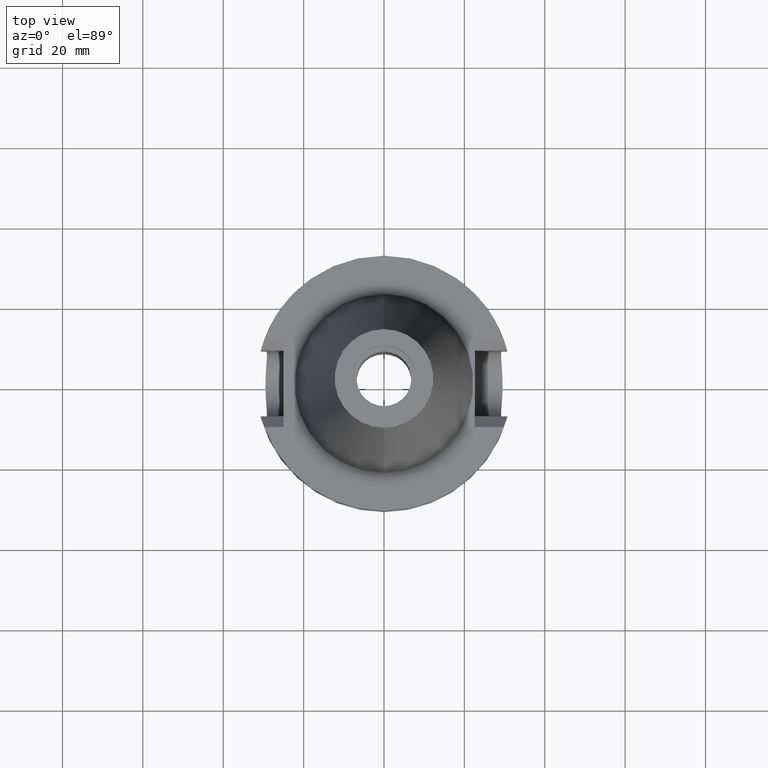
[diagram: clean part render]
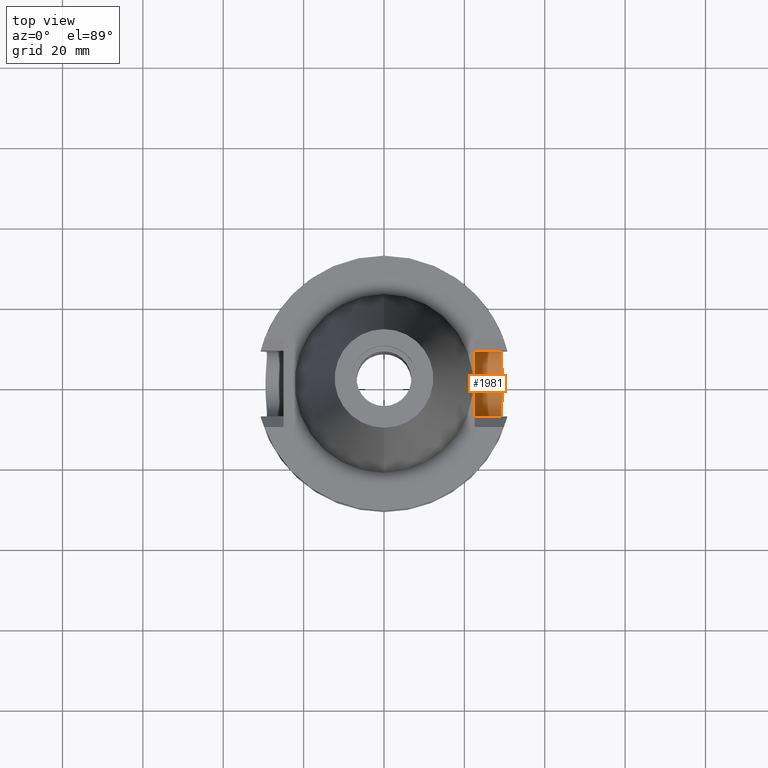
[diagram: same view with one face highlighted and labeled with its STEP entity id]
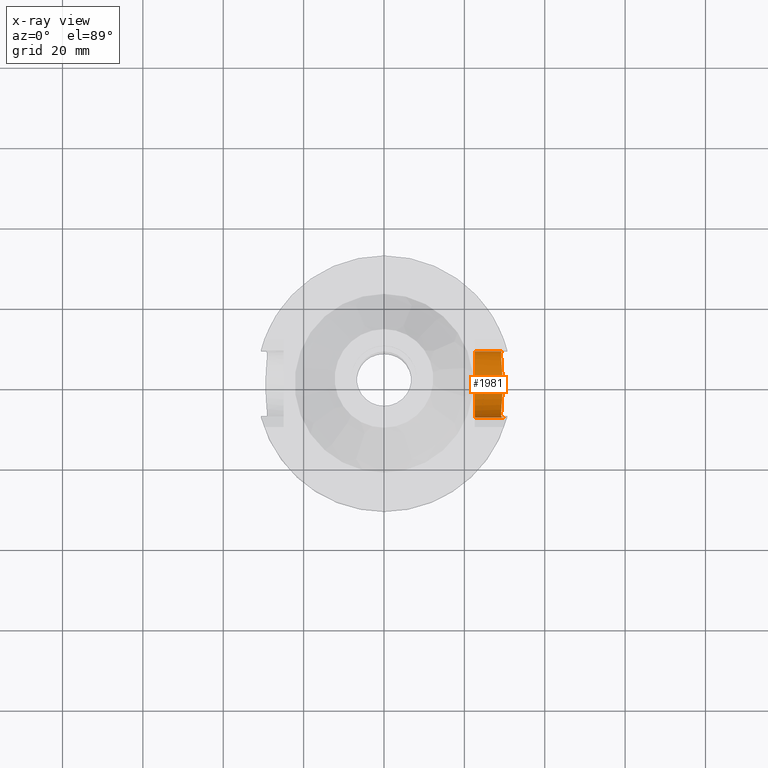
[diagram: x-ray of the same camera — body ghosted, the highlighted face saturated]
A machine part, top view. The second image highlights one B-rep face of the part: STEP entity #1981.
The next image is the same camera in x-ray: the body ghosted, the highlighted face saturated — about 0% of this face is hidden behind the body in this view.
In plain terms, the highlighted cylindrical surface (edge-blend (fillet) strip) has radius 8.19 mm, axis along (1, 0, 0).
Its self-contained STEP definition (entity closure, byte-faithful):
#177=CARTESIAN_POINT('',(2.257E1,0.E0,-1.931E1));
#178=DIRECTION('',(-1.E0,0.E0,0.E0));
#179=DIRECTION('',(0.E0,1.E0,0.E0));
#180=AXIS2_PLACEMENT_3D('',#177,#178,#179);
#185=CARTESIAN_POINT('',(2.257E1,0.E0,-1.931E1));
#186=DIRECTION('',(-1.E0,0.E0,0.E0));
#187=DIRECTION('',(0.E0,0.E0,-1.E0));
#188=AXIS2_PLACEMENT_3D('',#185,#186,#187);
#268=CARTESIAN_POINT('',(2.926622655994E1,8.156499324937E0,-2.004999907871E1));
#269=CARTESIAN_POINT('',(2.935044890862E1,8.164043623889E0,-1.996684325477E1));
#270=CARTESIAN_POINT('',(2.951898359708E1,8.176515552469E0,-1.980113379630E1));
#271=CARTESIAN_POINT('',(2.977184825368E1,8.187583323344E0,-1.955441731411E1));
#272=CARTESIAN_POINT('',(2.994038108907E1,8.189997537220E0,-1.939125430995E1));
#273=CARTESIAN_POINT('',(3.002460375380E1,8.189997537220E0,-1.931000033623E1));
#316=DIRECTION('',(-1.E0,7.934506691552E-8,-1.082093103779E-8));
#317=VECTOR('',#316,7.454603102180E0);
#318=CARTESIAN_POINT('',(3.002460310218E1,-8.190000591486E0,-1.930999991933E1));
#319=LINE('',#318,#317);
#323=DIRECTION('',(9.999999999999E-1,-3.303702789561E-7,-4.510420903318E-8));
#324=VECTOR('',#323,7.454603753801E0);
#325=CARTESIAN_POINT('',(2.257E1,8.19E0,-1.931E1));
#326=LINE('',#325,#324);
#330=CARTESIAN_POINT('',(2.926622492567E1,-8.156505482320E0,-2.004999819597E1));
#331=CARTESIAN_POINT('',(2.921082764204E1,-8.104992317991E0,-2.061779582785E1));
#332=CARTESIAN_POINT('',(2.913458950729E1,-7.883162578569E0,-2.174399728498E1));
#333=CARTESIAN_POINT('',(2.911917503554E1,-7.201716323873E0,-2.333487978560E1));
#334=CARTESIAN_POINT('',(2.917996722114E1,-6.210274420500E0,-2.474111716122E1));
#335=CARTESIAN_POINT('',(2.928450756410E1,-4.936174760060E0,-2.592257348169E1));
#336=CARTESIAN_POINT('',(2.939613940193E1,-3.426392716697E0,-2.681735535054E1));
#337=CARTESIAN_POINT('',(2.947931261622E1,-1.759484105035E0,-2.737292011917E1));
#338=CARTESIAN_POINT('',(2.949994772193E1,-5.874497500764E-1,-2.75E1));
#339=CARTESIAN_POINT('',(2.949994772193E1,0.E0,-2.75E1));
#344=CARTESIAN_POINT('',(2.949994772193E1,0.E0,-2.75E1));
#345=CARTESIAN_POINT('',(2.949994772193E1,5.838545011751E-1,-2.75E1));
#346=CARTESIAN_POINT('',(2.947957477400E1,1.750965250456E0,-2.737453650855E1));
#347=CARTESIAN_POINT('',(2.939664017381E1,3.418988917080E0,-2.682096687411E1));
#348=CARTESIAN_POINT('',(2.928475193223E1,4.933348365071E0,-2.592518076510E1));
#349=CARTESIAN_POINT('',(2.917980436197E1,6.212051306801E0,-2.473970134051E1));
#350=CARTESIAN_POINT('',(2.911900815839E1,7.205305696244E0,-2.332894016973E1));
#351=CARTESIAN_POINT('',(2.913492348558E1,7.885306583261E0,-2.173642116681E1));
#352=CARTESIAN_POINT('',(2.921114916104E1,8.105283384283E0,-2.061451856165E1));
#353=CARTESIAN_POINT('',(2.926622655994E1,8.156499324937E0,-2.004999907871E1));
#807=CARTESIAN_POINT('',(3.002460310218E1,-8.190000591486E0,-1.930999991933E1));
#812=CARTESIAN_POINT('',(3.002460310218E1,-8.190000591486E0,-1.930999991933E1));
#813=CARTESIAN_POINT('',(2.994038033630E1,-8.190000591486E0,-1.939125398412E1));
#814=CARTESIAN_POINT('',(2.977185090813E1,-8.187582635763E0,-1.955442180878E1));
#815=CARTESIAN_POINT('',(2.951898780826E1,-8.176512763051E0,-1.980113910931E1));
#816=CARTESIAN_POINT('',(2.935044611964E1,-8.164049649050E0,-1.996684352940E1));
#817=CARTESIAN_POINT('',(2.926622492567E1,-8.156505482320E0,-2.004999819597E1));
#1603=VERTEX_POINT('',#807);
#1604=VERTEX_POINT('',#817);
#1608=VERTEX_POINT('',#268);
#1609=VERTEX_POINT('',#273);
#1631=CARTESIAN_POINT('',(2.257E1,-8.19E0,-1.931E1));
#1632=VERTEX_POINT('',#1631);
#1693=CARTESIAN_POINT('',(2.257E1,8.19E0,-1.931E1));
#1694=VERTEX_POINT('',#1693);
#1695=CARTESIAN_POINT('',(2.257E1,0.E0,-2.75E1));
#1696=VERTEX_POINT('',#1695);
#1743=VERTEX_POINT('',#344);
#1962=CARTESIAN_POINT('',(2.257E1,0.E0,-1.931E1));
#1963=DIRECTION('',(1.E0,0.E0,0.E0));
#1964=DIRECTION('',(0.E0,0.E0,-1.E0));
#1965=AXIS2_PLACEMENT_3D('',#1962,#1963,#1964);
#1966=CYLINDRICAL_SURFACE('',#1965,8.19E0);
#1968=ORIENTED_EDGE('',*,*,#1967,.F.);
#1970=ORIENTED_EDGE('',*,*,#1969,.F.);
#1972=ORIENTED_EDGE('',*,*,#1971,.F.);
#1974=ORIENTED_EDGE('',*,*,#1973,.T.);
#1975=ORIENTED_EDGE('',*,*,#1866,.F.);
#1976=ORIENTED_EDGE('',*,*,#1864,.F.);
#1977=ORIENTED_EDGE('',*,*,#1917,.T.);
#1978=ORIENTED_EDGE('',*,*,#1944,.F.);
#1979=EDGE_LOOP('',(#1968,#1970,#1972,#1974,#1975,#1976,#1977,#1978));
#1980=FACE_OUTER_BOUND('',#1979,.F.);
#181=CIRCLE('',#180,8.19E0);
#189=CIRCLE('',#188,8.19E0);
#274=B_SPLINE_CURVE_WITH_KNOTS('',3,(#268,#269,#270,#271,#272,#273),
.UNSPECIFIED.,.F.,.F.,(4,1,1,4),(0.E0,3.333333333333E-1,6.666666666667E-1,1.E0),
.UNSPECIFIED.);
#340=B_SPLINE_CURVE_WITH_KNOTS('',3,(#330,#331,#332,#333,#334,#335,#336,#337,
#338,#339),.UNSPECIFIED.,.F.,.F.,(4,1,1,1,1,1,1,4),(0.E0,1.428571428571E-1,
2.857142857143E-1,4.285714285714E-1,5.714285714286E-1,7.142857142857E-1,
8.571428571429E-1,1.E0),.UNSPECIFIED.);
#354=B_SPLINE_CURVE_WITH_KNOTS('',3,(#344,#345,#346,#347,#348,#349,#350,#351,
#352,#353),.UNSPECIFIED.,.F.,.F.,(4,1,1,1,1,1,1,4),(0.E0,1.428571428571E-1,
2.857142857143E-1,4.285714285714E-1,5.714285714286E-1,7.142857142857E-1,
8.571428571429E-1,1.E0),.UNSPECIFIED.);
#818=B_SPLINE_CURVE_WITH_KNOTS('',3,(#812,#813,#814,#815,#816,#817),
.UNSPECIFIED.,.F.,.F.,(4,1,1,4),(0.E0,3.333333333333E-1,6.666666666667E-1,1.E0),
.UNSPECIFIED.);
#1864=EDGE_CURVE('',#1694,#1696,#181,.T.);
#1866=EDGE_CURVE('',#1696,#1632,#189,.T.);
#1917=EDGE_CURVE('',#1694,#1609,#326,.T.);
#1944=EDGE_CURVE('',#1608,#1609,#274,.T.);
#1967=EDGE_CURVE('',#1743,#1608,#354,.T.);
#1969=EDGE_CURVE('',#1604,#1743,#340,.T.);
#1971=EDGE_CURVE('',#1603,#1604,#818,.T.);
#1973=EDGE_CURVE('',#1603,#1632,#319,.T.);
#1981=ADVANCED_FACE('',(#1980),#1966,.F.);